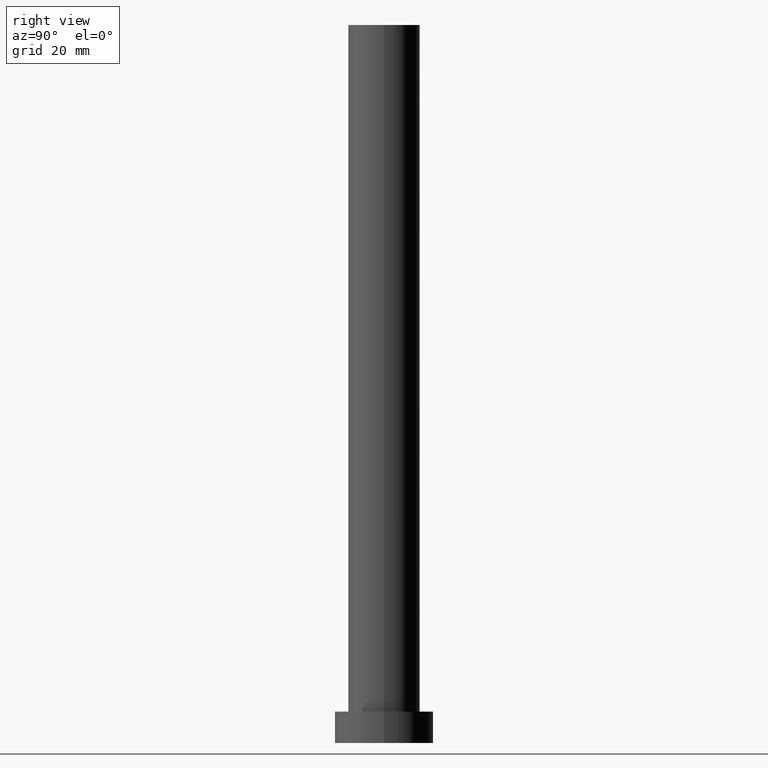
[diagram: clean part render]
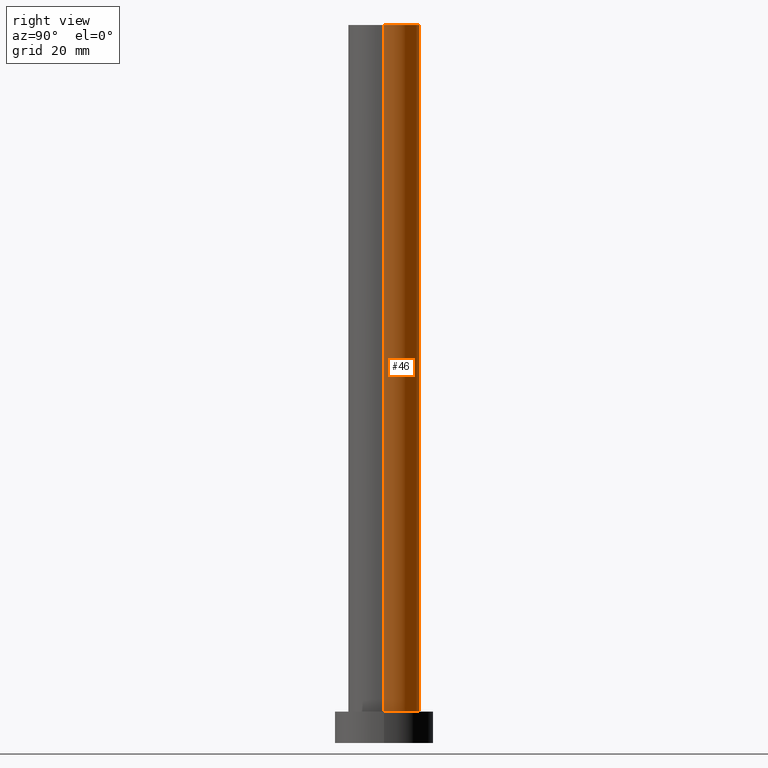
[diagram: same view with one face highlighted and labeled with its STEP entity id]
A machine part, right view. The second image highlights one B-rep face of the part: STEP entity #46.
In plain terms, the highlighted cylindrical surface (edge-blend (fillet) strip) has radius 8 mm, axis along (-0, -0, -1).
Its self-contained STEP definition (entity closure, byte-faithful):
#5 = EDGE_LOOP ( 'NONE', ( #187, #24, #240, #76 ) ) ;
#10 = CYLINDRICAL_SURFACE ( 'NONE', #83, 8.000000000000000000 ) ;
#24 = ORIENTED_EDGE ( 'NONE', *, *, #82, .T. ) ;
#25 = CARTESIAN_POINT ( 'NONE',  ( 0.000000000000000000, 0.000000000000000000, 160.0000000000000000 ) ) ;
#36 = CARTESIAN_POINT ( 'NONE',  ( 8.000000000000000000, 9.797174393178825657E-16, 160.0000000000000000 ) ) ;
#38 = VECTOR ( 'NONE', #175, 1000.000000000000000 ) ;
#41 = AXIS2_PLACEMENT_3D ( 'NONE', #188, #174, #134 ) ;
#46 = ADVANCED_FACE ( 'NONE', ( #74 ), #10, .T. ) ;
#48 = DIRECTION ( 'NONE',  ( -0.000000000000000000, -0.000000000000000000, -1.000000000000000000 ) ) ;
#59 = DIRECTION ( 'NONE',  ( 1.000000000000000000, 0.000000000000000000, 0.000000000000000000 ) ) ;
#65 = VERTEX_POINT ( 'NONE', #207 ) ;
#67 = VECTOR ( 'NONE', #48, 1000.000000000000000 ) ;
#74 = FACE_OUTER_BOUND ( 'NONE', #5, .T. ) ;
#76 = ORIENTED_EDGE ( 'NONE', *, *, #114, .F. ) ;
#78 = LINE ( 'NONE', #171, #38 ) ;
#82 = EDGE_CURVE ( 'NONE', #86, #115, #95, .T. ) ;
#83 = AXIS2_PLACEMENT_3D ( 'NONE', #25, #227, #129 ) ;
#86 = VERTEX_POINT ( 'NONE', #36 ) ;
#95 = LINE ( 'NONE', #144, #67 ) ;
#101 = CARTESIAN_POINT ( 'NONE',  ( 0.000000000000000000, 0.000000000000000000, 160.0000000000000000 ) ) ;
#111 = CARTESIAN_POINT ( 'NONE',  ( -8.000000000000000000, 0.000000000000000000, 160.0000000000000000 ) ) ;
#114 = EDGE_CURVE ( 'NONE', #250, #65, #78, .T. ) ;
#115 = VERTEX_POINT ( 'NONE', #176 ) ;
#129 = DIRECTION ( 'NONE',  ( -1.000000000000000000, 0.000000000000000000, 0.000000000000000000 ) ) ;
#134 = DIRECTION ( 'NONE',  ( 1.000000000000000000, 0.000000000000000000, 0.000000000000000000 ) ) ;
#144 = CARTESIAN_POINT ( 'NONE',  ( 8.000000000000000000, 9.797174393178825657E-16, 160.0000000000000000 ) ) ;
#157 = DIRECTION ( 'NONE',  ( 0.000000000000000000, 0.000000000000000000, 1.000000000000000000 ) ) ;
#159 = CIRCLE ( 'NONE', #41, 8.000000000000000000 ) ;
#171 = CARTESIAN_POINT ( 'NONE',  ( -8.000000000000000000, 0.000000000000000000, 160.0000000000000000 ) ) ;
#174 = DIRECTION ( 'NONE',  ( 0.000000000000000000, 0.000000000000000000, 1.000000000000000000 ) ) ;
#175 = DIRECTION ( 'NONE',  ( -0.000000000000000000, -0.000000000000000000, -1.000000000000000000 ) ) ;
#176 = CARTESIAN_POINT ( 'NONE',  ( 8.000000000000000000, 9.797174393178825657E-16, 7.000000000000000000 ) ) ;
#187 = ORIENTED_EDGE ( 'NONE', *, *, #196, .F. ) ;
#188 = CARTESIAN_POINT ( 'NONE',  ( 0.000000000000000000, 0.000000000000000000, 7.000000000000000000 ) ) ;
#196 = EDGE_CURVE ( 'NONE', #86, #250, #231, .T. ) ;
#203 = AXIS2_PLACEMENT_3D ( 'NONE', #101, #157, #59 ) ;
#207 = CARTESIAN_POINT ( 'NONE',  ( -8.000000000000000000, 0.000000000000000000, 7.000000000000000000 ) ) ;
#227 = DIRECTION ( 'NONE',  ( -0.000000000000000000, -0.000000000000000000, -1.000000000000000000 ) ) ;
#231 = CIRCLE ( 'NONE', #203, 8.000000000000000000 ) ;
#239 = EDGE_CURVE ( 'NONE', #115, #65, #159, .T. ) ;
#240 = ORIENTED_EDGE ( 'NONE', *, *, #239, .T. ) ;
#250 = VERTEX_POINT ( 'NONE', #111 ) ;